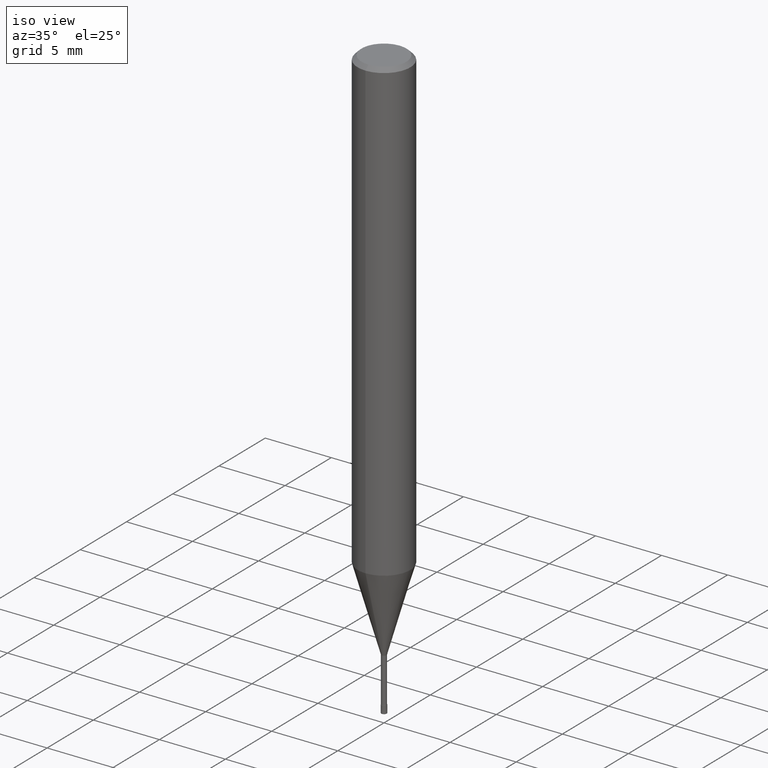
[diagram: clean part render]
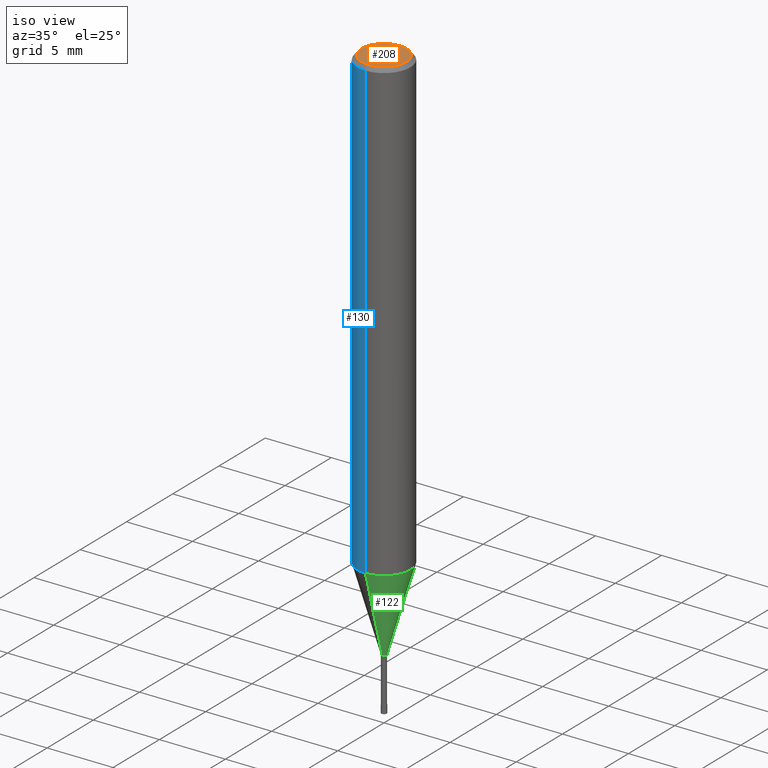
[diagram: same view with three faces highlighted in distinct colors, each labeled with its STEP entity id]
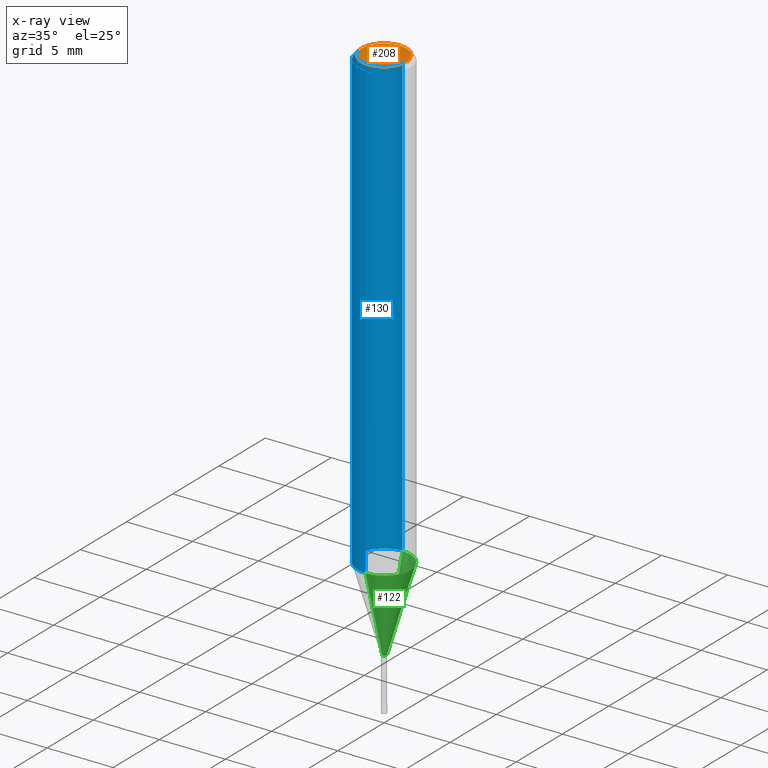
[diagram: x-ray of the same camera — body ghosted, the three highlighted faces saturated]
A machine part, iso view with three faces highlighted in distinct colors.
The next image is the same camera in x-ray (body ghosted, the three faces saturated) — at least one of them is partly hidden behind the body in this view.
Their STEP definitions:

[orange] entity #208 — the highlighted planar face has unit normal (-0, 0, 1).
#134=VERTEX_POINT('',#277);
#168=EDGE_CURVE('',#134,#196,#314,.T.);
#196=VERTEX_POINT('',#346);
#204=EDGE_CURVE('',#196,#134,#356,.T.);
#208=ADVANCED_FACE('',(#360),#361,.T.);
#277=CARTESIAN_POINT('',(0.0,1.7,0.0));
#314=CIRCLE('',#485,1.7);
#346=CARTESIAN_POINT('',(2.08183080149804E-016,-1.7,0.0));
#356=CIRCLE('',#534,1.7);
#360=FACE_OUTER_BOUND('',#539,.T.);
#361=PLANE('',#540);
#485=AXIS2_PLACEMENT_3D('',#648,#649,#650);
#534=AXIS2_PLACEMENT_3D('',#702,#703,#704);
#539=EDGE_LOOP('',(#709,#710));
#540=AXIS2_PLACEMENT_3D('',#711,#712,#713);
#648=CARTESIAN_POINT('',(0.0,0.0,0.0));
#649=DIRECTION('',(0.0,0.0,-1.0));
#650=DIRECTION('',(0.0,1.0,0.0));
#702=CARTESIAN_POINT('',(0.0,0.0,0.0));
#703=DIRECTION('',(0.0,0.0,-1.0));
#704=DIRECTION('',(0.0,1.0,0.0));
#709=ORIENTED_EDGE('',*,*,#168,.F.);
#710=ORIENTED_EDGE('',*,*,#204,.F.);
#711=CARTESIAN_POINT('',(0.0,0.85,0.0));
#712=DIRECTION('',(-0.0,0.0,1.0));
#713=DIRECTION('',(0.0,-1.0,0.0));

[blue] entity #130 — the highlighted cylindrical surface (edge-blend (fillet) strip) has radius 2 mm, axis along (-0, -0, 1).
#98=VERTEX_POINT('',#236);
#100=EDGE_CURVE('',#98,#128,#238,.T.);
#118=EDGE_CURVE('',#128,#160,#258,.T.);
#128=VERTEX_POINT('',#270);
#130=ADVANCED_FACE('',(#272),#273,.T.);
#160=VERTEX_POINT('',#305);
#172=EDGE_CURVE('',#202,#98,#319,.T.);
#180=EDGE_CURVE('',#202,#160,#327,.T.);
#202=VERTEX_POINT('',#354);
#236=CARTESIAN_POINT('',(2.44921270764475E-016,-2.0,-0.299999999999997));
#238=CIRCLE('',#383,2.0);
#258=LINE('',#409,#410);
#270=CARTESIAN_POINT('',(0.0,2.0,-0.299999999999997));
#272=FACE_OUTER_BOUND('',#426,.T.);
#273=CYLINDRICAL_SURFACE('',#427,2.0);
#305=CARTESIAN_POINT('',(0.0,2.0,-34.688));
#319=LINE('',#491,#492);
#327=CIRCLE('',#502,2.0);
#354=CARTESIAN_POINT('',(2.44921270764475E-016,-2.0,-34.688));
#383=AXIS2_PLACEMENT_3D('',#551,#552,#553);
#409=CARTESIAN_POINT('',(-2.44921270764475E-016,2.0,-17.494));
#410=VECTOR('',#577,1.0);
#426=EDGE_LOOP('',(#594,#595,#596,#597));
#427=AXIS2_PLACEMENT_3D('',#598,#599,#600);
#491=CARTESIAN_POINT('',(2.44921270764475E-016,-2.0,-17.494));
#492=VECTOR('',#659,1.0);
#502=AXIS2_PLACEMENT_3D('',#663,#664,#665);
#551=CARTESIAN_POINT('',(0.0,0.0,-0.299999999999997));
#552=DIRECTION('',(0.0,0.0,-1.0));
#553=DIRECTION('',(0.0,1.0,0.0));
#577=DIRECTION('',(0.0,0.0,-1.0));
#594=ORIENTED_EDGE('',*,*,#118,.T.);
#595=ORIENTED_EDGE('',*,*,#180,.F.);
#596=ORIENTED_EDGE('',*,*,#172,.T.);
#597=ORIENTED_EDGE('',*,*,#100,.T.);
#598=CARTESIAN_POINT('',(0.0,0.0,-17.494));
#599=DIRECTION('',(-0.0,-0.0,1.0));
#600=DIRECTION('',(0.0,1.0,0.0));
#659=DIRECTION('',(-0.0,-0.0,1.0));
#663=CARTESIAN_POINT('',(0.0,0.0,-34.688));
#664=DIRECTION('',(0.0,0.0,-1.0));
#665=DIRECTION('',(0.0,1.0,0.0));

[green] entity #122 — the highlighted conical surface has half-angle 16.001 deg.
#122=ADVANCED_FACE('',(#263),#264,.T.);
#124=VERTEX_POINT('',#266);
#126=EDGE_CURVE('',#124,#176,#268,.T.);
#136=EDGE_CURVE('',#178,#184,#279,.T.);
#142=EDGE_CURVE('',#178,#176,#285,.T.);
#158=EDGE_CURVE('',#184,#124,#303,.T.);
#176=VERTEX_POINT('',#323);
#178=VERTEX_POINT('',#325);
#184=VERTEX_POINT('',#331);
#263=FACE_OUTER_BOUND('',#415,.T.);
#264=CONICAL_SURFACE('',#416,1.09495,0.279261921280279);
#266=CARTESIAN_POINT('',(2.3261397690856E-017,-0.18995,-41.0));
#268=LINE('',#421,#422);
#279=LINE('',#435,#436);
#285=CIRCLE('',#445,1.99995);
#303=CIRCLE('',#469,0.18995);
#323=CARTESIAN_POINT('',(2.44915147732706E-016,-1.99995,-34.688));
#325=CARTESIAN_POINT('',(0.0,1.99995,-34.688));
#331=CARTESIAN_POINT('',(0.0,0.18995,-41.0));
#415=EDGE_LOOP('',(#585,#586,#587,#588));
#416=AXIS2_PLACEMENT_3D('',#589,#590,#591);
#421=CARTESIAN_POINT('',(1.34088272711781E-016,-1.09495,-37.844));
#422=VECTOR('',#592,1.0);
#435=CARTESIAN_POINT('',(-1.34088272711781E-016,1.09495,-37.844));
#436=VECTOR('',#604,1.0);
#445=AXIS2_PLACEMENT_3D('',#611,#612,#613);
#469=AXIS2_PLACEMENT_3D('',#635,#636,#637);
#585=ORIENTED_EDGE('',*,*,#136,.F.);
#586=ORIENTED_EDGE('',*,*,#142,.T.);
#587=ORIENTED_EDGE('',*,*,#126,.F.);
#588=ORIENTED_EDGE('',*,*,#158,.F.);
#589=CARTESIAN_POINT('',(0.0,0.0,-37.844));
#590=DIRECTION('',(-0.0,-0.0,1.0));
#591=DIRECTION('',(0.0,1.0,0.0));
#592=DIRECTION('',(3.37558135426109E-017,-0.275646238787252,0.961259148743169));
#604=DIRECTION('',(3.37558135426109E-017,-0.275646238787252,-0.961259148743169));
#611=CARTESIAN_POINT('',(0.0,0.0,-34.688));
#612=DIRECTION('',(0.0,0.0,-1.0));
#613=DIRECTION('',(0.0,1.0,0.0));
#635=CARTESIAN_POINT('',(0.0,0.0,-41.0));
#636=DIRECTION('',(0.0,0.0,-1.0));
#637=DIRECTION('',(0.0,1.0,0.0));